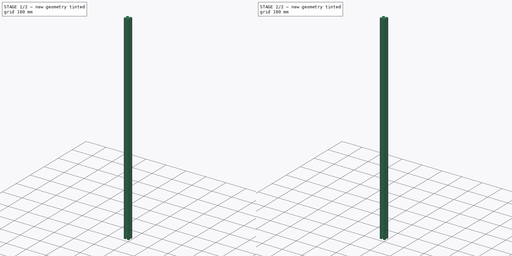
[diagram: build sequence overview — one tinted view per stage of 2, left to right]
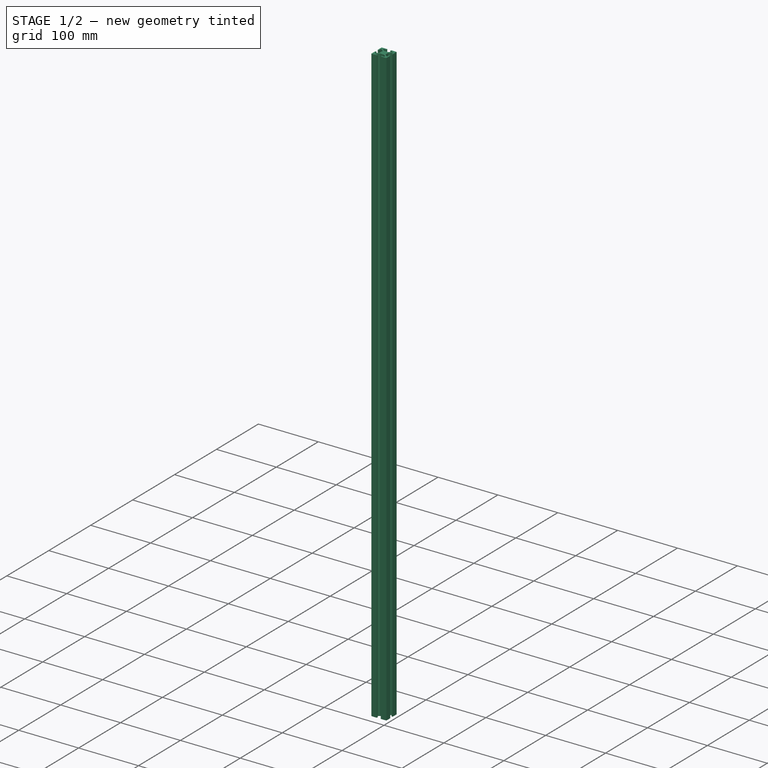
[diagram: stage 1 of 2 — iso view after this stage's code; geometry added in this stage tinted green]
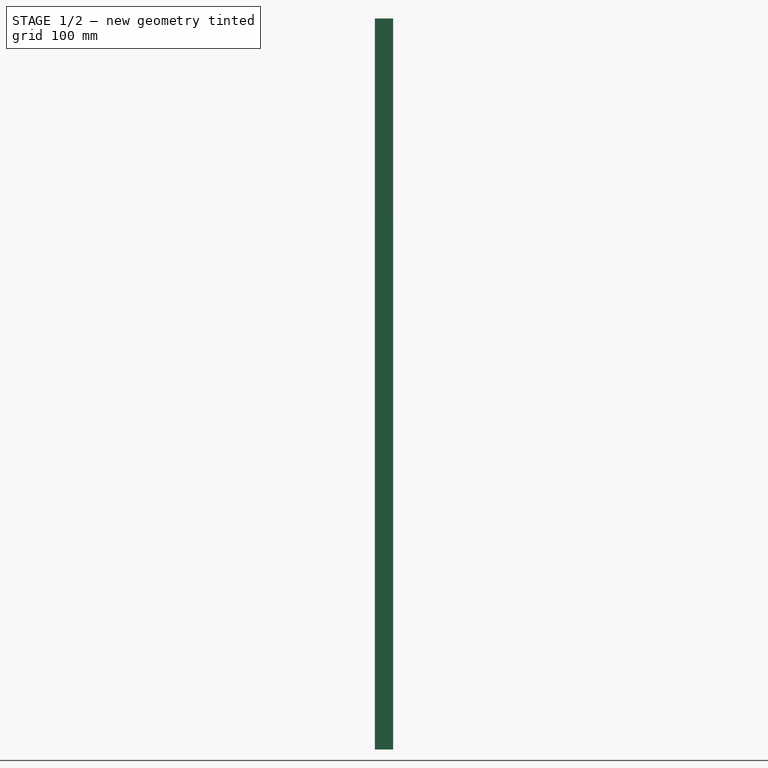
[diagram: stage 1 of 2 — front view after this stage's code; geometry added in this stage tinted green]
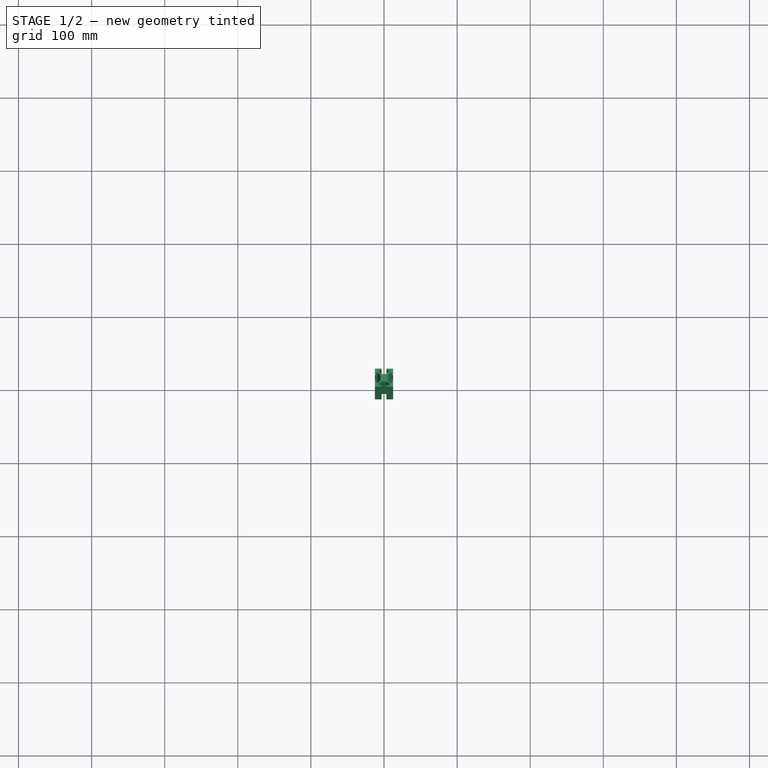
[diagram: stage 1 of 2 — top view after this stage's code; geometry added in this stage tinted green]
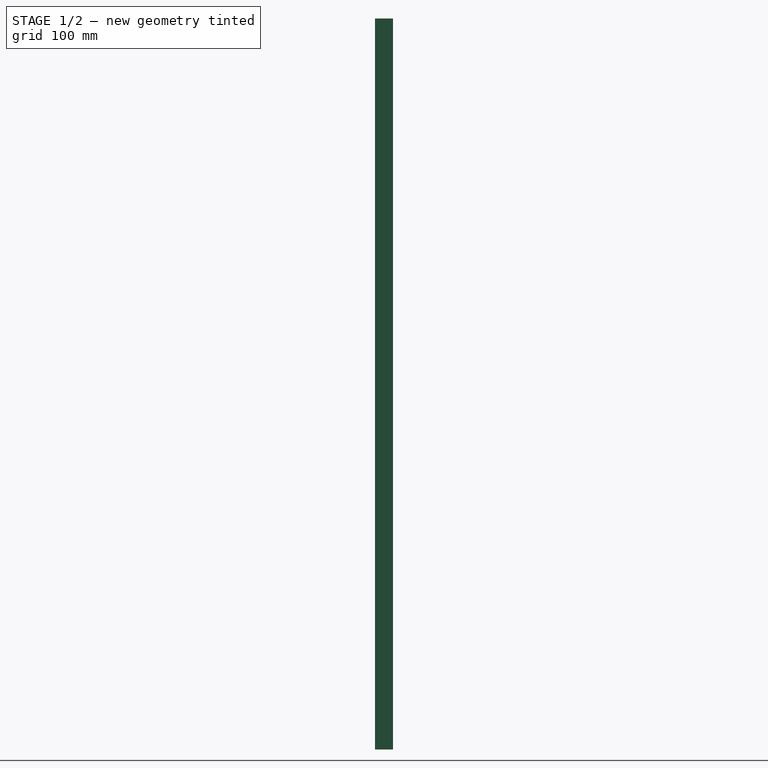
[diagram: stage 1 of 2 — right view after this stage's code; geometry added in this stage tinted green]
FCSTD DOCUMENT  (FreeCAD 0.14R3402 (Git))
Label: 2525_extruded_alum_1000mm
License: CC-BY 3.0
LicenseURL: http://creativecommons.org/licenses/by/3.0/
objects: Sketcher::SketchObject×2, PartDesign::Pad×1, PartDesign::Mirrored×1, Part::Fuse×1, PartDesign::Pocket×1
note: 8 computed .brp shape members not serialized (recipe doc carries the construction recipe); baked Part::Feature solids carry a one-line shape summary decoded from their .brp

FEATURE [Sketcher::SketchObject] Sketch
  sketch-geometry (26):
    g0: LineSegment [constr] StartX=10 StartY=-10 StartZ=0 EndX=-10 EndY=-10 EndZ=0
    g1: LineSegment StartX=-12.5 StartY=3 StartZ=0 EndX=-12.5 EndY=12.25 EndZ=0
    g2: LineSegment StartX=-12.5 StartY=12.25 StartZ=0 EndX=-3.25 EndY=12.25 EndZ=0
    g3: LineSegment StartX=-3.25 StartY=12.25 StartZ=0 EndX=-3.25 EndY=10.25 EndZ=0
    g4: LineSegment StartX=-3.25 StartY=10.25 StartZ=0 EndX=-7.25 EndY=10.25 EndZ=0
    g5: LineSegment StartX=-12.5 StartY=3 StartZ=0 EndX=-10.5 EndY=3 EndZ=0
    g6: LineSegment StartX=-10.5 StartY=3 StartZ=0 EndX=-10.5 EndY=7 EndZ=0
    g7: LineSegment StartX=-7.25 StartY=10.25 StartZ=0 EndX=-7.25 EndY=8.25 EndZ=0
    g8: LineSegment StartX=-7.25 StartY=8.25 StartZ=0 EndX=-3.25 EndY=5 EndZ=0
    g9: LineSegment StartX=-10.5 StartY=7 StartZ=0 EndX=-8.5 EndY=7 EndZ=0
    g10: LineSegment StartX=-8.5 StartY=7 StartZ=0 EndX=-4.96447 EndY=3.25 EndZ=0
    g11: LineSegment StartX=-4.96447 StartY=3.25 StartZ=0 EndX=-4.96447 EndY=0 EndZ=0
    g12: LineSegment StartX=-3.25 StartY=5 StartZ=0 EndX=3.25 EndY=5 EndZ=0
    g13: LineSegment StartX=3.25 StartY=5 StartZ=0 EndX=7.25 EndY=8.25 EndZ=0
    g14: LineSegment StartX=7.25 StartY=8.25 StartZ=0 EndX=7.25 EndY=10.25 EndZ=0
    g15: LineSegment StartX=7.25 StartY=10.25 StartZ=0 EndX=3.25 EndY=10.25 EndZ=0
    g16: LineSegment StartX=3.25 StartY=10.25 StartZ=0 EndX=3.25 EndY=12.25 EndZ=0
    g17: LineSegment StartX=3.25 StartY=12.25 StartZ=0 EndX=12.5 EndY=12.25 EndZ=0
    g18: LineSegment StartX=12.5 StartY=12.25 StartZ=0 EndX=12.5 EndY=3 EndZ=0
    g19: LineSegment StartX=12.5 StartY=3 StartZ=0 EndX=10.5 EndY=3 EndZ=0
    g20: LineSegment StartX=10.5 StartY=3 StartZ=0 EndX=10.5 EndY=7 EndZ=0
    g21: LineSegment StartX=10.5 StartY=7 StartZ=0 EndX=8.5 EndY=7 EndZ=0
    g22: LineSegment StartX=8.5 StartY=7 StartZ=0 EndX=4.96447 EndY=3.25 EndZ=0
    g23: LineSegment StartX=4.96447 StartY=3.25 StartZ=0 EndX=4.96447 EndY=0 EndZ=0
    g24: LineSegment StartX=-4.96447 StartY=0 StartZ=0 EndX=4.96447 EndY=0 EndZ=0
    g25: LineSegment [constr] StartX=-3.25 StartY=12.25 StartZ=0 EndX=3.25 EndY=12.25 EndZ=0
  constraints (75):
    c: Symmetric(g0,g0,g-2)
    c: Coincident(g1,g2)
    c: Horizontal(g2)
    c: Coincident(g2,g3)
    c: Coincident(g3,g4)
    c: Horizontal(g4)
    c: Coincident(g1,g5)
    c: Coincident(g5,g6)
    c: Coincident(g4,g7)
    c: Coincident(g7,g8)
    c: Coincident(g6,g9)
    c: Coincident(g9,g10)
    c: Coincident(g10,g11)
    c: PointOnObject(g11,g-1)
    c: Vertical(g11)
    c: Horizontal(g5)
    c: Vertical(g6)
    c: Horizontal(g9)
    c: Vertical(g7)
    c: Vertical(g3)
    c: Coincident(g8,g12)
    c: Horizontal(g12)
    c: Coincident(g12,g13)
    c: Coincident(g13,g14)
    c: Vertical(g14)
    c: Coincident(g14,g15)
    c: Horizontal(g15)
    c: Coincident(g15,g16)
    c: Vertical(g16)
    c: Coincident(g16,g17)
    c: Horizontal(g17)
    c: Coincident(g17,g18)
    c: Vertical(g18)
    c: Coincident(g18,g19)
    c: Horizontal(g19)
    c: Coincident(g19,g20)
    c: Vertical(g20)
    c: Coincident(g20,g21)
    c: Horizontal(g21)
    c: Coincident(g21,g22)
    c: Coincident(g22,g23)
    c: PointOnObject(g23,g-1)
    c: Vertical(g23)
    c: Coincident(g24,g11)
    c: Coincident(g24,g23)
    c: Equal(g5,g3)
    c: Equal(g3,g16)
    c: Equal(g16,g19)
    c: Equal(g9,g7)
    c: Equal(g7,g14)
    c: Equal(g14,g21)
    c: Equal(g10,g8)
    c: Equal(g8,g13)
    c: Equal(g13,g22)
    c: Equal(g6,g4)
    c: Equal(g4,g15)
    c: Equal(g15,g20)
    c: Equal(g11,g23)
    c: DistanceY(g-1,g1) = 3
    c: DistanceX(g5) = 2
    c: Coincident(g25,g2)
    c: Coincident(g25,g16)
    c: Horizontal(g25)
    c: DistanceX(g25) = 6.5
    c: Symmetric(g16,g2,g-2)
    c: Equal(g1,g2)
    c: Equal(g2,g17)
    c: Equal(g17,g18)
    c: Vertical(g1)
    c: DistanceX(g21) = -2
    c: DistanceY(g-1,g8) = 5
    c: DistanceX(g15) = -4
    c: DistanceX(g12) = 6.5
    c: DistanceY(g23) = -3.25
    c: DistanceX(g1,g17) = 25
FEATURE [PartDesign::Pad] Pad  label="Change_me_for_height"
  Length = 1000
  Length2 = 10
  Sketch = -> Sketch
  Type = 0
FEATURE [PartDesign::Mirrored] Mirrored
  MirrorPlane = -> Sketch [H_Axis]
  Originals = -> [Pad]
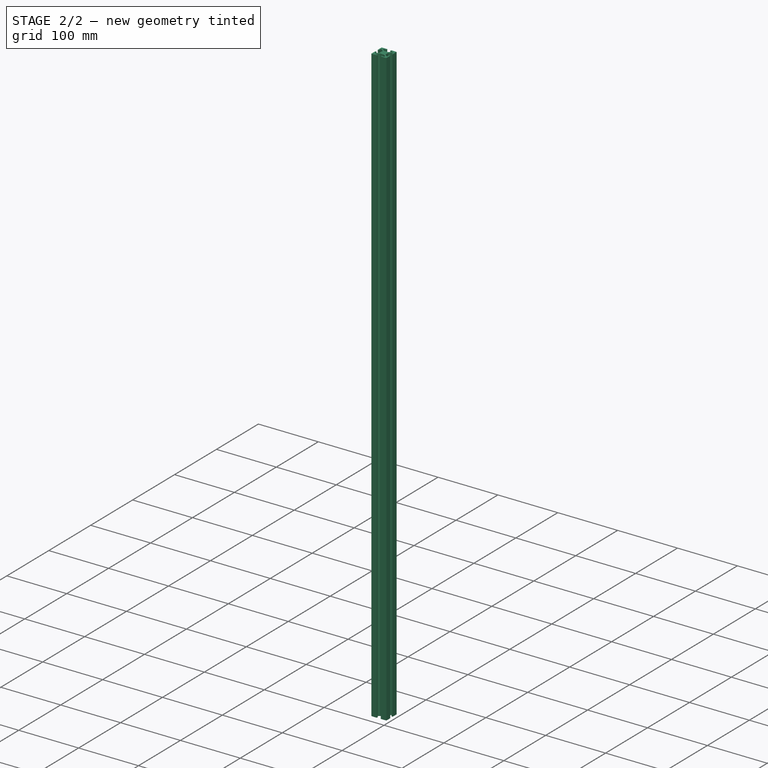
[diagram: stage 2 of 2 — iso view after this stage's code; geometry added in this stage tinted green]
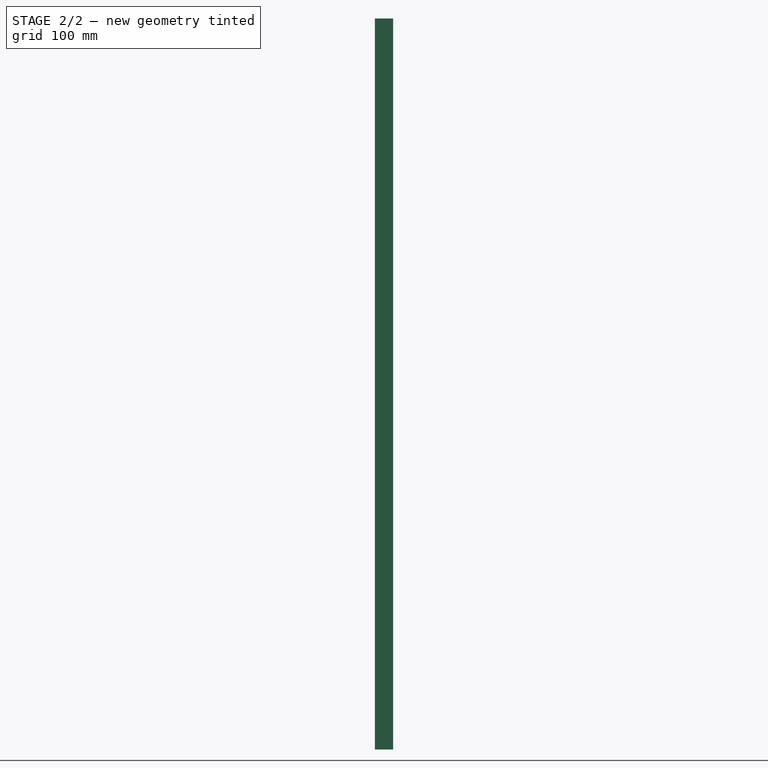
[diagram: stage 2 of 2 — front view after this stage's code; geometry added in this stage tinted green]
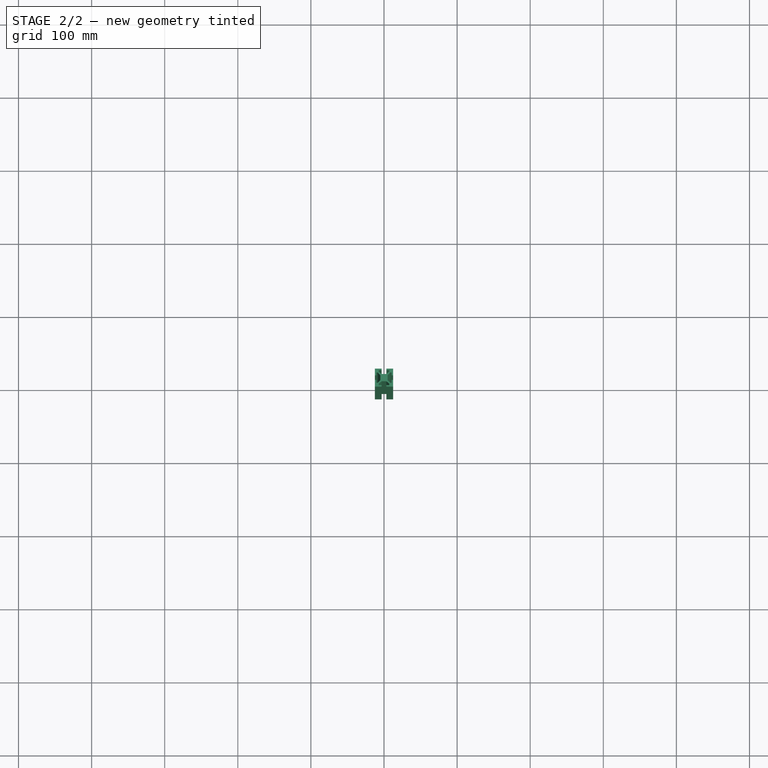
[diagram: stage 2 of 2 — top view after this stage's code; geometry added in this stage tinted green]
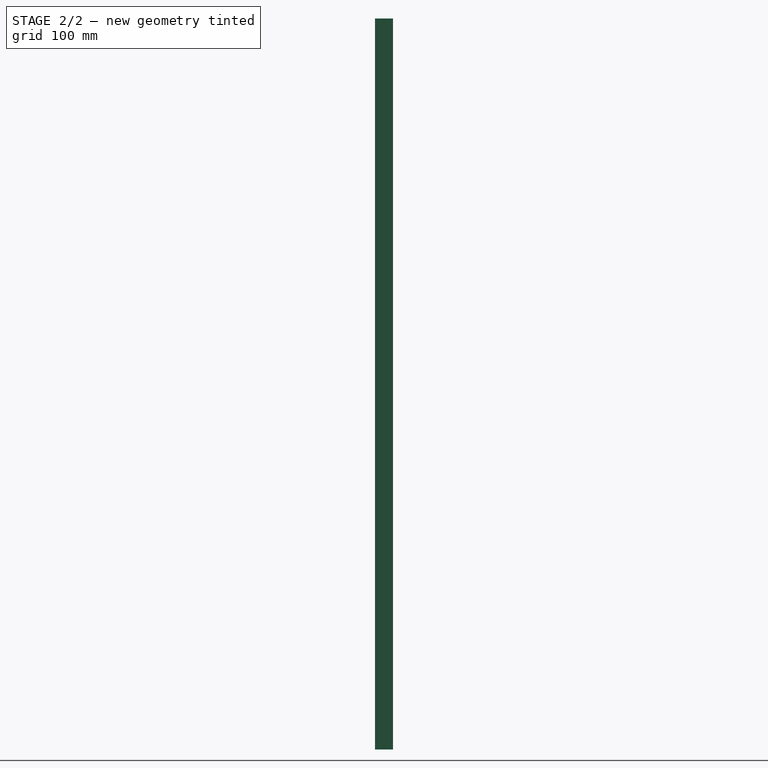
[diagram: stage 2 of 2 — right view after this stage's code; geometry added in this stage tinted green]
FEATURE [Part::Fuse] Fusion  label="rail"
  Base = -> Pad
  Tool = -> Mirrored
FEATURE [Sketcher::SketchObject] Sketch001
  Placement = pos=(0,7,0) rot=(1,0,0;1.5708rad)
  Support = -> Fusion [Face44]
  sketch-geometry (1):
    g0: Circle CenterX=0 CenterY=0 CenterZ=0 NormalX=0 NormalY=0 NormalZ=1 Radius=2
  constraints (2):
    c: Coincident(g0,g-1)
    c: Radius(g0) = 2
FEATURE [PartDesign::Pocket] Pocket
  Length = 5
  Sketch = -> Sketch001
  Type = 1
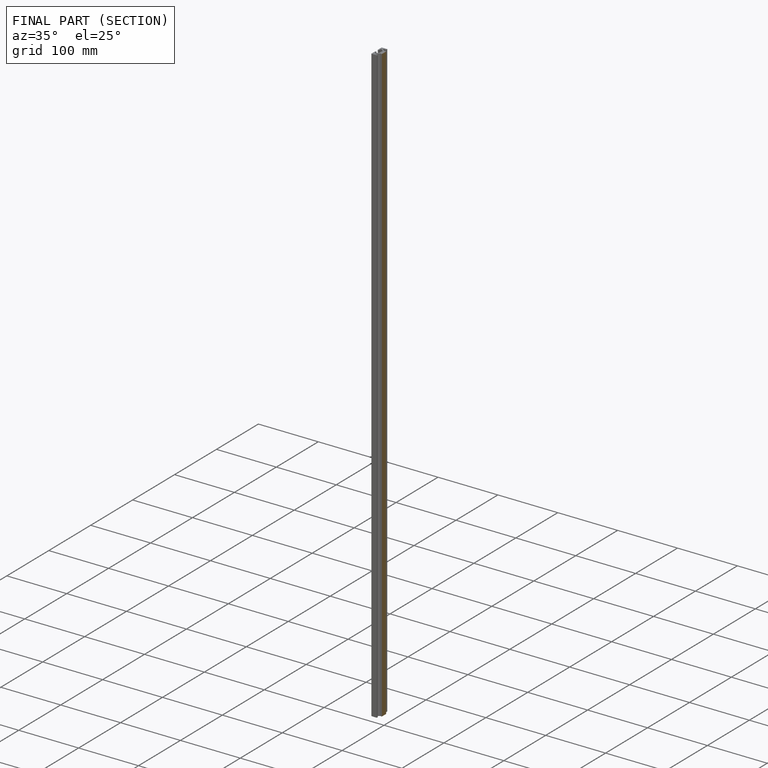
[diagram: finished part — half-section view (interior)]
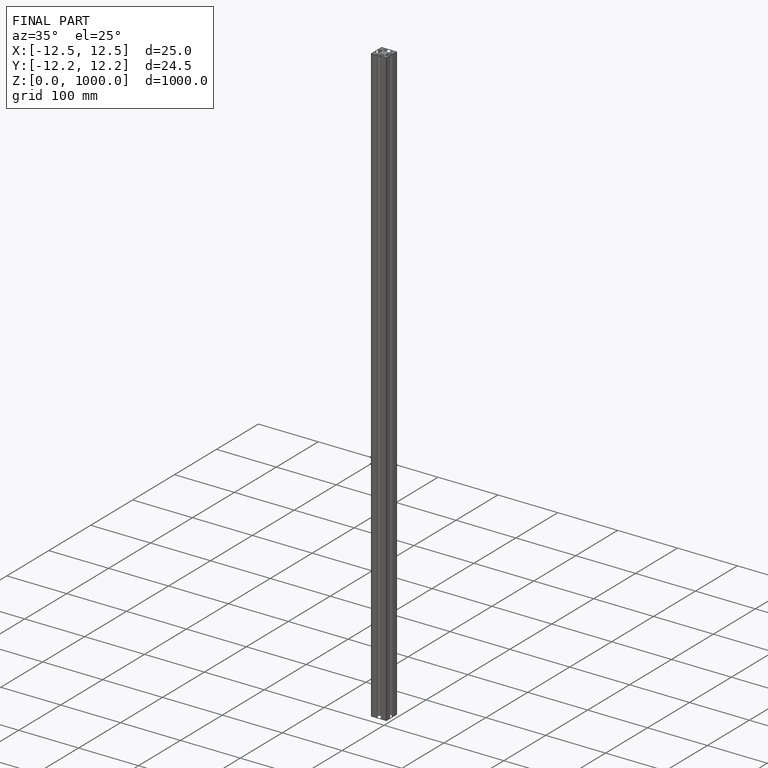
[diagram: finished part — iso view with bounding-box wireframe]
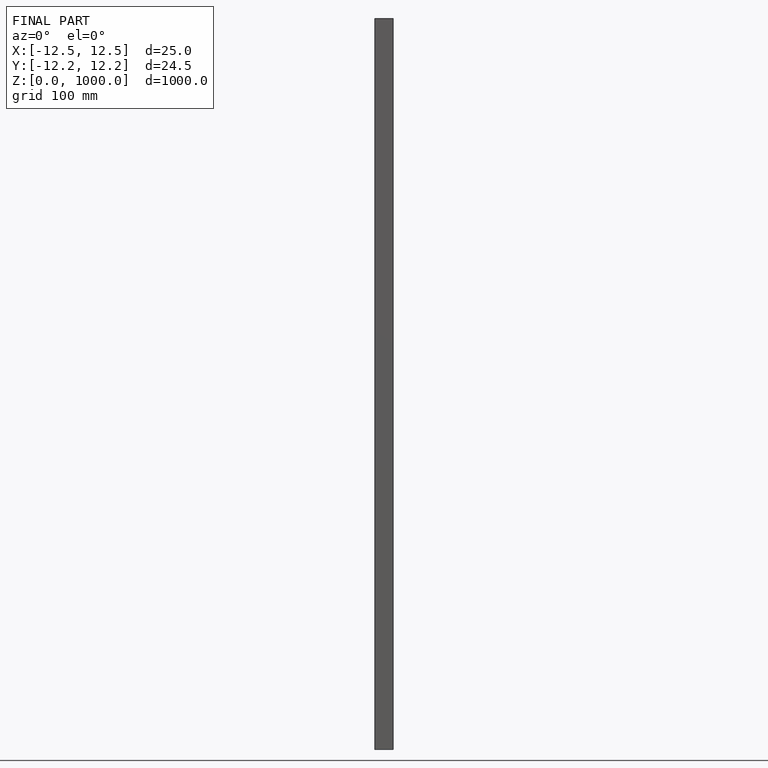
[diagram: finished part — front view with bounding-box wireframe]
